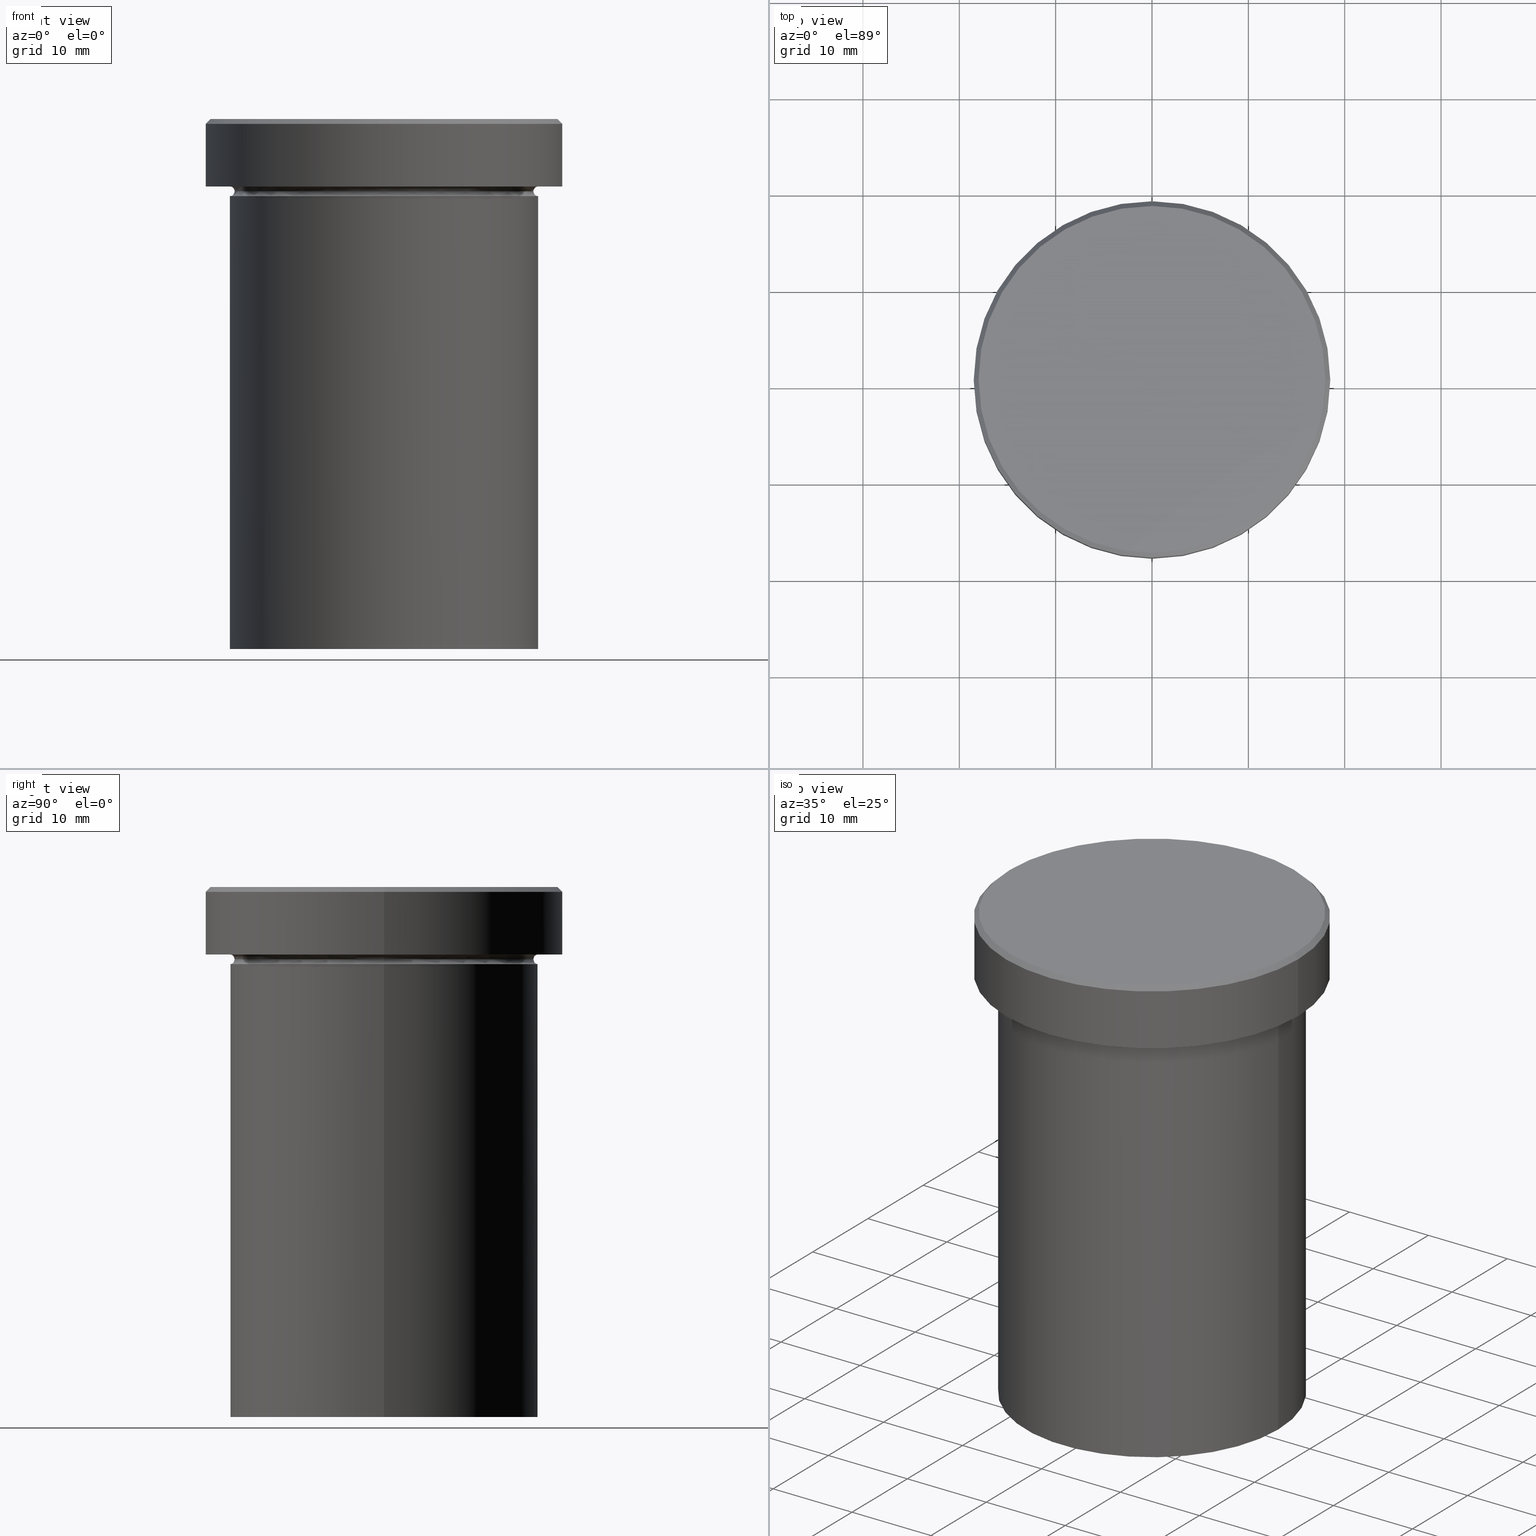
[diagram: canonical four-view strip — front | top / right | iso, engineering-drawing reading convention]
A machine part, canonical four-view strip (front | top / right | iso — engineering-drawing reading convention). The complete STEP part file that produces these views, byte-faithful:
ISO-10303-21;
HEADER;
FILE_DESCRIPTION (( 'STEP AP203' ),
    '1' );
FILE_NAME ('9a04.STEP',
    '2024-01-02T18:53:54',
    ( '' ),
    ( '' ),
    'SwSTEP 2.0',
    'SolidWorks 2019',
    '' );
FILE_SCHEMA (( 'CONFIG_CONTROL_DESIGN' ));
ENDSEC;

DATA;
#1 = VERTEX_POINT ( 'NONE', #240 ) ;
#2 = VECTOR ( 'NONE', #23, 1000.000000000000114 ) ;
#3 = CARTESIAN_POINT ( 'NONE',  ( 16.00000000000000000, 0.000000000000000000, -8.000000000000000000 ) ) ;
#4 = CARTESIAN_POINT ( 'NONE',  ( -16.00000000000000000, 1.959434878635765131E-15, -8.000000000000000000 ) ) ;
#5 = EDGE_LOOP ( 'NONE', ( #224, #128, #217, #188 ) ) ;
#6 = FACE_OUTER_BOUND ( 'NONE', #265, .T. ) ;
#7 = CLOSED_SHELL ( 'NONE', ( #403, #354, #77, #177, #14, #122, #144, #55, #210, #367, #267, #205, #59 ) ) ;
#8 = ORIENTED_EDGE ( 'NONE', *, *, #342, .T. ) ;
#9 = DIRECTION ( 'NONE',  ( -0.000000000000000000, -0.000000000000000000, 1.000000000000000000 ) ) ;
#10 = CARTESIAN_POINT ( 'NONE',  ( 0.000000000000000000, 0.000000000000000000, -7.500000000000000000 ) ) ;
#11 = CIRCLE ( 'NONE', #199, 15.50000000000000000 ) ;
#12 = APPROVAL_ROLE ( '' ) ;
#13 = ORIENTED_EDGE ( 'NONE', *, *, #18, .T. ) ;
#14 = ADVANCED_FACE ( 'NONE', ( #80 ), #208, .T. ) ;
#15 = DIRECTION ( 'NONE',  ( 1.000000000000000000, 0.000000000000000000, 0.000000000000000000 ) ) ;
#16 = CARTESIAN_POINT ( 'NONE',  ( 0.000000000000000000, 0.000000000000000000, -7.500000000000000000 ) ) ;
#17 = DATE_AND_TIME ( #295, #47 ) ;
#18 = EDGE_CURVE ( 'NONE', #1, #269, #285, .T. ) ;
#19 = TOROIDAL_SURFACE ( 'NONE', #176, 16.00000000000000000, 0.5000000000000000000 ) ;
#20 = APPROVAL_DATE_TIME ( #168, #203 ) ;
#21 = FACE_BOUND ( 'NONE', #351, .T. ) ;
#22 = AXIS2_PLACEMENT_3D ( 'NONE', #10, #384, #247 ) ;
#23 = DIRECTION ( 'NONE',  ( 0.7071067811865500152, 8.659560562354962440E-17, -0.7071067811865451302 ) ) ;
#24 = CIRCLE ( 'NONE', #382, 18.50000000000000000 ) ;
#25 = EDGE_CURVE ( 'NONE', #1, #186, #380, .T. ) ;
#26 = ORIENTED_EDGE ( 'NONE', *, *, #48, .T. ) ;
#27 = CARTESIAN_POINT ( 'NONE',  ( 16.00000000000000000, 1.959434878635765131E-15, -7.500000000000000000 ) ) ;
#28 = EDGE_LOOP ( 'NONE', ( #309, #248 ) ) ;
#29 = APPROVAL_DATE_TIME ( #321, #152 ) ;
#30 = DIRECTION ( 'NONE',  ( -1.000000000000000000, 0.000000000000000000, -0.000000000000000000 ) ) ;
#31 = VERTEX_POINT ( 'NONE', #244 ) ;
#32 = SECURITY_CLASSIFICATION ( '', '', #108 ) ;
#33 = DIRECTION ( 'NONE',  ( 0.000000000000000000, -0.000000000000000000, 1.000000000000000000 ) ) ;
#34 = ORIENTED_EDGE ( 'NONE', *, *, #250, .F. ) ;
#35 = CARTESIAN_POINT ( 'NONE',  ( 0.000000000000000000, 0.000000000000000000, -8.000000000000000000 ) ) ;
#36 = EDGE_LOOP ( 'NONE', ( #325, #274 ) ) ;
#37 = EDGE_CURVE ( 'NONE', #153, #133, #399, .T. ) ;
#38 =( NAMED_UNIT ( * ) SI_UNIT ( $, .STERADIAN. ) SOLID_ANGLE_UNIT ( ) );
#39 = ORIENTED_EDGE ( 'NONE', *, *, #48, .F. ) ;
#40 = DIRECTION ( 'NONE',  ( 0.000000000000000000, 0.000000000000000000, -1.000000000000000000 ) ) ;
#41 =( GEOMETRIC_REPRESENTATION_CONTEXT ( 3 ) GLOBAL_UNCERTAINTY_ASSIGNED_CONTEXT ( ( #215 ) ) GLOBAL_UNIT_ASSIGNED_CONTEXT ( ( #303, #76, #38 ) ) REPRESENTATION_CONTEXT ( 'NONE', 'WORKASPACE' ) );
#42 = APPROVAL_STATUS ( 'not_yet_approved' ) ;
#43 = CARTESIAN_POINT ( 'NONE',  ( 16.00000000000000000, 1.959434878635765131E-15, -6.999999999999999112 ) ) ;
#44 = DIRECTION ( 'NONE',  ( -0.000000000000000000, -0.000000000000000000, 1.000000000000000000 ) ) ;
#45 = CARTESIAN_POINT ( 'NONE',  ( 0.000000000000000000, 0.000000000000000000, 0.000000000000000000 ) ) ;
#46 = VERTEX_POINT ( 'NONE', #357 ) ;
#47 = LOCAL_TIME ( 19, 53, 54.00000000000000000, #331 ) ;
#48 = EDGE_CURVE ( 'NONE', #150, #314, #326, .T. ) ;
#49 = CARTESIAN_POINT ( 'NONE',  ( 0.000000000000000000, 0.000000000000000000, -6.999999999999998224 ) ) ;
#50 = VECTOR ( 'NONE', #223, 1000.000000000000000 ) ;
#51 = CARTESIAN_POINT ( 'NONE',  ( 0.000000000000000000, 0.000000000000000000, 0.000000000000000000 ) ) ;
#52 = CONICAL_SURFACE ( 'NONE', #347, 17.99999999999998224, 0.7853981633974517207 ) ;
#53 = DIRECTION ( 'NONE',  ( 1.000000000000000000, 0.000000000000000000, 0.000000000000000000 ) ) ;
#54 = ORIENTED_EDGE ( 'NONE', *, *, #304, .F. ) ;
#55 = ADVANCED_FACE ( 'NONE', ( #85 ), #184, .T. ) ;
#56 = FACE_OUTER_BOUND ( 'NONE', #5, .T. ) ;
#57 = ORIENTED_EDGE ( 'NONE', *, *, #348, .T. ) ;
#58 = EDGE_LOOP ( 'NONE', ( #379, #13, #358, #139 ) ) ;
#59 = ADVANCED_FACE ( 'NONE', ( #56 ), #360, .T. ) ;
#60 = DESIGN_CONTEXT ( 'detailed design', #103, 'design' ) ;
#61 = PLANE ( 'NONE',  #394 ) ;
#62 = VERTEX_POINT ( 'NONE', #86 ) ;
#63 = APPROVAL_PERSON_ORGANIZATION ( #388, #138, #164 ) ;
#64 = CARTESIAN_POINT ( 'NONE',  ( 0.000000000000000000, 0.000000000000000000, -54.99999999999999289 ) ) ;
#65 = CALENDAR_DATE ( 2024, 2, 1 ) ;
#66 = EDGE_CURVE ( 'NONE', #155, #153, #286, .T. ) ;
#67 = DIRECTION ( 'NONE',  ( 1.000000000000000000, 0.000000000000000000, 0.000000000000000000 ) ) ;
#68 = ORIENTED_EDGE ( 'NONE', *, *, #37, .T. ) ;
#69 = DIRECTION ( 'NONE',  ( -1.000000000000000000, 0.000000000000000000, -0.000000000000000000 ) ) ;
#70 = AXIS2_PLACEMENT_3D ( 'NONE', #299, #398, #159 ) ;
#71 = ORIENTED_EDGE ( 'NONE', *, *, #66, .F. ) ;
#72 = ADVANCED_BREP_SHAPE_REPRESENTATION ( '9a04', ( #237, #242 ), #41 ) ;
#73 = DIRECTION ( 'NONE',  ( 0.000000000000000000, 0.000000000000000000, -1.000000000000000000 ) ) ;
#74 = PLANE ( 'NONE',  #119 ) ;
#75 = CIRCLE ( 'NONE', #279, 0.5000000000000004441 ) ;
#76 =( NAMED_UNIT ( * ) PLANE_ANGLE_UNIT ( ) SI_UNIT ( $, .RADIAN. ) );
#77 = ADVANCED_FACE ( 'NONE', ( #132 ), #339, .F. ) ;
#78 = EDGE_LOOP ( 'NONE', ( #71, #94, #149, #294 ) ) ;
#79 = CARTESIAN_POINT ( 'NONE',  ( 17.99999999999998224, 2.204364238465233456E-15, 0.000000000000000000 ) ) ;
#80 = FACE_OUTER_BOUND ( 'NONE', #288, .T. ) ;
#81 = AXIS2_PLACEMENT_3D ( 'NONE', #318, #33, #283 ) ;
#82 = EDGE_CURVE ( 'NONE', #150, #302, #218, .T. ) ;
#83 = PRODUCT_DEFINITION_SHAPE ( 'NONE', 'NONE',  #408 ) ;
#84 = DIRECTION ( 'NONE',  ( 0.000000000000000000, 0.000000000000000000, -1.000000000000000000 ) ) ;
#85 = FACE_OUTER_BOUND ( 'NONE', #58, .T. ) ;
#86 = CARTESIAN_POINT ( 'NONE',  ( -17.99999999999998224, 0.000000000000000000, 0.000000000000000000 ) ) ;
#87 = ORIENTED_EDGE ( 'NONE', *, *, #332, .F. ) ;
#88 = CIRCLE ( 'NONE', #172, 16.00000000000000000 ) ;
#89 = EDGE_CURVE ( 'NONE', #155, #46, #317, .T. ) ;
#90 = FACE_OUTER_BOUND ( 'NONE', #36, .T. ) ;
#91 = ORIENTED_EDGE ( 'NONE', *, *, #304, .T. ) ;
#92 = DIRECTION ( 'NONE',  ( -0.000000000000000000, -0.000000000000000000, 1.000000000000000000 ) ) ;
#93 = CARTESIAN_POINT ( 'NONE',  ( 0.000000000000000000, 16.00000000000000000, -54.99999999999999289 ) ) ;
#94 = ORIENTED_EDGE ( 'NONE', *, *, #89, .T. ) ;
#95 = APPROVAL_STATUS ( 'not_yet_approved' ) ;
#96 = EDGE_CURVE ( 'NONE', #269, #377, #323, .T. ) ;
#97 = AXIS2_PLACEMENT_3D ( 'NONE', #49, #175, #147 ) ;
#98 = DIRECTION ( 'NONE',  ( -0.000000000000000000, -0.000000000000000000, 1.000000000000000000 ) ) ;
#99 = DIRECTION ( 'NONE',  ( -0.000000000000000000, -0.000000000000000000, 1.000000000000000000 ) ) ;
#100 = EDGE_LOOP ( 'NONE', ( #353, #278, #352, #211 ) ) ;
#101 = DIRECTION ( 'NONE',  ( 1.000000000000000000, 0.000000000000000000, 0.000000000000000000 ) ) ;
#102 = PERSON_AND_ORGANIZATION_ROLE ( 'creator' ) ;
#103 = APPLICATION_CONTEXT ( 'configuration controlled 3d designs of mechanical parts and assemblies' ) ;
#104 = CARTESIAN_POINT ( 'NONE',  ( 0.000000000000000000, 0.000000000000000000, -0.5000000000000143219 ) ) ;
#105 = ORGANIZATION ( 'NEUR�EN�', 'NEUR�EN�', '' ) ;
#106 = CC_DESIGN_PERSON_AND_ORGANIZATION_ASSIGNMENT ( #258, #200, ( #306 ) ) ;
#107 = PERSON_AND_ORGANIZATION ( #375, #105 ) ;
#108 = SECURITY_CLASSIFICATION_LEVEL ( 'unclassified' ) ;
#109 = DIRECTION ( 'NONE',  ( -1.000000000000000000, 0.000000000000000000, 0.000000000000000000 ) ) ;
#110 = AXIS2_PLACEMENT_3D ( 'NONE', #310, #344, #53 ) ;
#111 = AXIS2_PLACEMENT_3D ( 'NONE', #409, #121, #349 ) ;
#112 = DIRECTION ( 'NONE',  ( -0.000000000000000000, -0.000000000000000000, 1.000000000000000000 ) ) ;
#113 = EDGE_CURVE ( 'NONE', #46, #155, #191, .T. ) ;
#114 = ORIENTED_EDGE ( 'NONE', *, *, #182, .F. ) ;
#115 = AXIS2_PLACEMENT_3D ( 'NONE', #16, #167, #298 ) ;
#116 = CYLINDRICAL_SURFACE ( 'NONE', #289, 16.00000000000000000 ) ;
#117 = CARTESIAN_POINT ( 'NONE',  ( 18.50000000000000000, 0.000000000000000000, -0.5000000000000143219 ) ) ;
#118 = DIRECTION ( 'NONE',  ( 0.000000000000000000, 0.000000000000000000, -1.000000000000000000 ) ) ;
#119 = AXIS2_PLACEMENT_3D ( 'NONE', #297, #40, #69 ) ;
#120 = ORIENTED_EDGE ( 'NONE', *, *, #227, .T. ) ;
#121 = DIRECTION ( 'NONE',  ( -0.000000000000000000, -0.000000000000000000, 1.000000000000000000 ) ) ;
#122 = ADVANCED_FACE ( 'NONE', ( #90 ), #61, .T. ) ;
#123 = DIRECTION ( 'NONE',  ( -0.000000000000000000, -0.000000000000000000, 1.000000000000000000 ) ) ;
#124 = AXIS2_PLACEMENT_3D ( 'NONE', #390, #291, #15 ) ;
#125 = FACE_OUTER_BOUND ( 'NONE', #214, .T. ) ;
#126 = DIRECTION ( 'NONE',  ( 1.000000000000000000, 0.000000000000000000, 0.000000000000000000 ) ) ;
#127 = EDGE_CURVE ( 'NONE', #150, #133, #311, .T. ) ;
#128 = ORIENTED_EDGE ( 'NONE', *, *, #257, .F. ) ;
#129 = CYLINDRICAL_SURFACE ( 'NONE', #319, 16.00000000000000000 ) ;
#130 = DIRECTION ( 'NONE',  ( -0.000000000000000000, -1.000000000000000000, -0.000000000000000000 ) ) ;
#131 = TOROIDAL_SURFACE ( 'NONE', #124, 16.00000000000000000, 0.5000000000000000000 ) ;
#132 = FACE_OUTER_BOUND ( 'NONE', #180, .T. ) ;
#133 = VERTEX_POINT ( 'NONE', #3 ) ;
#134 = DIRECTION ( 'NONE',  ( -1.000000000000000000, 1.224646799147349509E-16, 0.000000000000000000 ) ) ;
#135 = DIRECTION ( 'NONE',  ( 0.000000000000000000, 0.000000000000000000, -1.000000000000000000 ) ) ;
#136 = APPROVAL_STATUS ( 'not_yet_approved' ) ;
#137 = DIRECTION ( 'NONE',  ( -0.000000000000000000, -0.000000000000000000, 1.000000000000000000 ) ) ;
#138 = APPROVAL ( #42, 'NEUR�EN�' ) ;
#139 = ORIENTED_EDGE ( 'NONE', *, *, #284, .T. ) ;
#140 = FACE_OUTER_BOUND ( 'NONE', #28, .T. ) ;
#141 = AXIS2_PLACEMENT_3D ( 'NONE', #64, #123, #126 ) ;
#142 = LOCAL_TIME ( 19, 53, 54.00000000000000000, #293 ) ;
#143 = PERSON_AND_ORGANIZATION ( #375, #105 ) ;
#144 = ADVANCED_FACE ( 'NONE', ( #125 ), #220, .T. ) ;
#145 = FACE_OUTER_BOUND ( 'NONE', #78, .T. ) ;
#146 = DIRECTION ( 'NONE',  ( -0.000000000000000000, -0.000000000000000000, 1.000000000000000000 ) ) ;
#147 = DIRECTION ( 'NONE',  ( 1.000000000000000000, 0.000000000000000000, 0.000000000000000000 ) ) ;
#148 = CC_DESIGN_PERSON_AND_ORGANIZATION_ASSIGNMENT ( #107, #232, ( #207 ) ) ;
#149 = ORIENTED_EDGE ( 'NONE', *, *, #332, .T. ) ;
#150 = VERTEX_POINT ( 'NONE', #280 ) ;
#151 = LOCAL_TIME ( 19, 53, 54.00000000000000000, #221 ) ;
#152 = APPROVAL ( #95, 'NEUR�EN�' ) ;
#153 = VERTEX_POINT ( 'NONE', #4 ) ;
#154 = AXIS2_PLACEMENT_3D ( 'NONE', #27, #187, #185 ) ;
#155 = VERTEX_POINT ( 'NONE', #251 ) ;
#156 = DIRECTION ( 'NONE',  ( -0.000000000000000000, -0.000000000000000000, 1.000000000000000000 ) ) ;
#157 = DIRECTION ( 'NONE',  ( -0.000000000000000000, -0.000000000000000000, 1.000000000000000000 ) ) ;
#158 = ORIENTED_EDGE ( 'NONE', *, *, #182, .T. ) ;
#159 = DIRECTION ( 'NONE',  ( 1.000000000000000000, 0.000000000000000000, 0.000000000000000000 ) ) ;
#160 = CARTESIAN_POINT ( 'NONE',  ( -16.00000000000000000, 0.000000000000000000, -7.500000000000000000 ) ) ;
#161 = VECTOR ( 'NONE', #156, 1000.000000000000000 ) ;
#162 = DIRECTION ( 'NONE',  ( 0.000000000000000000, -1.000000000000000000, 0.000000000000000000 ) ) ;
#163 = CARTESIAN_POINT ( 'NONE',  ( 0.000000000000000000, 0.000000000000000000, -0.5000000000000143219 ) ) ;
#164 = APPROVAL_ROLE ( '' ) ;
#165 = DATE_AND_TIME ( #296, #336 ) ;
#166 = CARTESIAN_POINT ( 'NONE',  ( 0.000000000000000000, 0.000000000000000000, -8.000000000000000000 ) ) ;
#167 = DIRECTION ( 'NONE',  ( 0.000000000000000000, 0.000000000000000000, -1.000000000000000000 ) ) ;
#168 = DATE_AND_TIME ( #396, #393 ) ;
#169 = CARTESIAN_POINT ( 'NONE',  ( 0.000000000000000000, 0.000000000000000000, -7.500000000000000000 ) ) ;
#170 = PERSON_AND_ORGANIZATION_ROLE ( 'design_supplier' ) ;
#171 = CARTESIAN_POINT ( 'NONE',  ( 17.99999999999998224, 2.234980408443918426E-15, 0.000000000000000000 ) ) ;
#172 = AXIS2_PLACEMENT_3D ( 'NONE', #260, #9, #333 ) ;
#173 = FACE_OUTER_BOUND ( 'NONE', #356, .T. ) ;
#174 = CARTESIAN_POINT ( 'NONE',  ( -17.99999999999998224, 0.000000000000000000, 0.000000000000000000 ) ) ;
#175 = DIRECTION ( 'NONE',  ( -0.000000000000000000, -0.000000000000000000, 1.000000000000000000 ) ) ;
#176 = AXIS2_PLACEMENT_3D ( 'NONE', #341, #73, #109 ) ;
#177 = ADVANCED_FACE ( 'NONE', ( #6 ), #129, .T. ) ;
#178 = DIRECTION ( 'NONE',  ( -0.000000000000000000, -0.000000000000000000, 1.000000000000000000 ) ) ;
#179 = ORIENTED_EDGE ( 'NONE', *, *, #227, .F. ) ;
#180 = EDGE_LOOP ( 'NONE', ( #114, #320, #68, #305 ) ) ;
#181 = DATE_TIME_ROLE ( 'classification_date' ) ;
#182 = EDGE_CURVE ( 'NONE', #314, #150, #11, .T. ) ;
#183 = CC_DESIGN_APPROVAL ( #203, ( #408 ) ) ;
#184 = CYLINDRICAL_SURFACE ( 'NONE', #275, 18.50000000000000000 ) ;
#185 = DIRECTION ( 'NONE',  ( -1.000000000000000000, -1.224646799147349509E-16, 0.000000000000000000 ) ) ;
#186 = VERTEX_POINT ( 'NONE', #261 ) ;
#187 = DIRECTION ( 'NONE',  ( -1.224646799147353207E-16, 1.000000000000000000, 0.000000000000000000 ) ) ;
#188 = ORIENTED_EDGE ( 'NONE', *, *, #284, .F. ) ;
#189 = SHAPE_DEFINITION_REPRESENTATION ( #83, #72 ) ;
#190 = CARTESIAN_POINT ( 'NONE',  ( 16.00000000000000000, 0.000000000000000000, -7.500000000000000000 ) ) ;
#191 = CIRCLE ( 'NONE', #300, 16.00000000000000000 ) ;
#192 = CIRCLE ( 'NONE', #376, 18.50000000000000000 ) ;
#193 = ORIENTED_EDGE ( 'NONE', *, *, #348, .F. ) ;
#194 = ORIENTED_EDGE ( 'NONE', *, *, #276, .T. ) ;
#195 = DIRECTION ( 'NONE',  ( 1.224646799147353207E-16, 1.000000000000000000, 0.000000000000000000 ) ) ;
#196 = AXIS2_PLACEMENT_3D ( 'NONE', #35, #98, #282 ) ;
#197 = PERSON_AND_ORGANIZATION_ROLE ( 'classification_officer' ) ;
#198 = CARTESIAN_POINT ( 'NONE',  ( 0.000000000000000000, 0.000000000000000000, 0.000000000000000000 ) ) ;
#199 = AXIS2_PLACEMENT_3D ( 'NONE', #169, #44, #292 ) ;
#200 = PERSON_AND_ORGANIZATION_ROLE ( 'design_owner' ) ;
#201 = APPROVAL_DATE_TIME ( #391, #138 ) ;
#202 = LINE ( 'NONE', #389, #372 ) ;
#203 = APPROVAL ( #136, 'NEUR�EN�' ) ;
#204 = CC_DESIGN_APPROVAL ( #138, ( #207 ) ) ;
#205 = ADVANCED_FACE ( 'NONE', ( #173 ), #355, .F. ) ;
#206 = DIRECTION ( 'NONE',  ( -0.7071067811865500152, 0.000000000000000000, -0.7071067811865451302 ) ) ;
#207 = PRODUCT_DEFINITION_FORMATION_WITH_SPECIFIED_SOURCE ( 'LIBOVOLN�', '', #306, .NOT_KNOWN. ) ;
#208 = CYLINDRICAL_SURFACE ( 'NONE', #110, 18.50000000000000000 ) ;
#209 = APPROVAL_PERSON_ORGANIZATION ( #301, #203, #12 ) ;
#210 = ADVANCED_FACE ( 'NONE', ( #21, #140 ), #74, .T. ) ;
#211 = ORIENTED_EDGE ( 'NONE', *, *, #387, .F. ) ;
#212 = DIRECTION ( 'NONE',  ( 0.000000000000000000, 0.000000000000000000, -1.000000000000000000 ) ) ;
#213 = CC_DESIGN_PERSON_AND_ORGANIZATION_ASSIGNMENT ( #264, #197, ( #32 ) ) ;
#214 = EDGE_LOOP ( 'NONE', ( #370, #8 ) ) ;
#215 = UNCERTAINTY_MEASURE_WITH_UNIT (LENGTH_MEASURE( 1.000000000000000082E-05 ), #303, 'distance_accuracy_value', 'NONE');
#216 = DIRECTION ( 'NONE',  ( 1.000000000000000000, 0.000000000000000000, 0.000000000000000000 ) ) ;
#217 = ORIENTED_EDGE ( 'NONE', *, *, #387, .T. ) ;
#218 = CIRCLE ( 'NONE', #154, 0.5000000000000004441 ) ;
#219 = CARTESIAN_POINT ( 'NONE',  ( -18.50000000000000000, 2.265596578422603396E-15, 0.000000000000000000 ) ) ;
#220 = PLANE ( 'NONE',  #81 ) ;
#221 = COORDINATED_UNIVERSAL_TIME_OFFSET ( 1, 0, .AHEAD. ) ;
#222 = AXIS2_PLACEMENT_3D ( 'NONE', #190, #162, #252 ) ;
#223 = DIRECTION ( 'NONE',  ( -0.000000000000000000, -0.000000000000000000, 1.000000000000000000 ) ) ;
#224 = ORIENTED_EDGE ( 'NONE', *, *, #361, .F. ) ;
#225 = APPROVAL_ROLE ( '' ) ;
#226 = FACE_OUTER_BOUND ( 'NONE', #392, .T. ) ;
#227 = EDGE_CURVE ( 'NONE', #31, #302, #88, .T. ) ;
#228 = DIRECTION ( 'NONE',  ( -0.000000000000000000, -0.000000000000000000, 1.000000000000000000 ) ) ;
#229 = AXIS2_PLACEMENT_3D ( 'NONE', #271, #84, #245 ) ;
#230 = DIRECTION ( 'NONE',  ( 1.000000000000000000, 0.000000000000000000, 0.000000000000000000 ) ) ;
#231 = CIRCLE ( 'NONE', #406, 0.5000000000000004441 ) ;
#232 = PERSON_AND_ORGANIZATION_ROLE ( 'creator' ) ;
#233 = EDGE_LOOP ( 'NONE', ( #158, #374, #179, #34 ) ) ;
#234 = CARTESIAN_POINT ( 'NONE',  ( -16.00000000000000000, 1.959434878635765131E-15, -7.500000000000000000 ) ) ;
#235 = DIRECTION ( 'NONE',  ( 1.000000000000000000, 0.000000000000000000, 0.000000000000000000 ) ) ;
#236 = MECHANICAL_CONTEXT ( 'NONE', #365, 'mechanical' ) ;
#237 = MANIFOLD_SOLID_BREP ( 'Zkosen�1', #7 ) ;
#238 = DIRECTION ( 'NONE',  ( 1.000000000000000000, 0.000000000000000000, 0.000000000000000000 ) ) ;
#239 = AXIS2_PLACEMENT_3D ( 'NONE', #166, #137, #230 ) ;
#240 = CARTESIAN_POINT ( 'NONE',  ( -18.50000000000000000, 2.265596578422603396E-15, -6.999999999999998224 ) ) ;
#241 = LINE ( 'NONE', #174, #270 ) ;
#242 = AXIS2_PLACEMENT_3D ( 'NONE', #45, #362, #335 ) ;
#243 = ORIENTED_EDGE ( 'NONE', *, *, #127, .T. ) ;
#244 = CARTESIAN_POINT ( 'NONE',  ( -16.00000000000000000, 0.000000000000000000, -6.999999999999999112 ) ) ;
#245 = DIRECTION ( 'NONE',  ( -1.000000000000000000, 0.000000000000000000, 0.000000000000000000 ) ) ;
#246 = CARTESIAN_POINT ( 'NONE',  ( 0.000000000000000000, 0.000000000000000000, 0.000000000000000000 ) ) ;
#247 = DIRECTION ( 'NONE',  ( 1.000000000000000000, 0.000000000000000000, 0.000000000000000000 ) ) ;
#248 = ORIENTED_EDGE ( 'NONE', *, *, #18, .F. ) ;
#249 = CIRCLE ( 'NONE', #70, 17.99999999999998224 ) ;
#250 = EDGE_CURVE ( 'NONE', #314, #31, #75, .T. ) ;
#251 = CARTESIAN_POINT ( 'NONE',  ( -16.00000000000000000, 1.959434878635765131E-15, -54.99999999999999289 ) ) ;
#252 = DIRECTION ( 'NONE',  ( 0.000000000000000000, 0.000000000000000000, -1.000000000000000000 ) ) ;
#253 = CC_DESIGN_APPROVAL ( #152, ( #32 ) ) ;
#254 = CC_DESIGN_DATE_AND_TIME_ASSIGNMENT ( #17, #327, ( #408 ) ) ;
#255 = CALENDAR_DATE ( 2024, 2, 1 ) ;
#256 = ORIENTED_EDGE ( 'NONE', *, *, #315, .F. ) ;
#257 = EDGE_CURVE ( 'NONE', #62, #340, #328, .T. ) ;
#258 = PERSON_AND_ORGANIZATION ( #375, #105 ) ;
#259 = APPROVAL_PERSON_ORGANIZATION ( #273, #152, #225 ) ;
#260 = CARTESIAN_POINT ( 'NONE',  ( 0.000000000000000000, 0.000000000000000000, -6.999999999999999112 ) ) ;
#261 = CARTESIAN_POINT ( 'NONE',  ( -18.50000000000000000, 2.265596578422603396E-15, -0.5000000000000143219 ) ) ;
#262 = PRODUCT_RELATED_PRODUCT_CATEGORY ( 'detail', '', ( #306 ) ) ;
#263 = CIRCLE ( 'NONE', #97, 18.50000000000000000 ) ;
#264 = PERSON_AND_ORGANIZATION ( #375, #105 ) ;
#265 = EDGE_LOOP ( 'NONE', ( #345, #405, #54, #87 ) ) ;
#266 = DIRECTION ( 'NONE',  ( 1.000000000000000000, 0.000000000000000000, 0.000000000000000000 ) ) ;
#267 = ADVANCED_FACE ( 'NONE', ( #226 ), #131, .F. ) ;
#268 = CARTESIAN_POINT ( 'NONE',  ( 0.000000000000000000, 0.000000000000000000, -6.999999999999998224 ) ) ;
#269 = VERTEX_POINT ( 'NONE', #395 ) ;
#270 = VECTOR ( 'NONE', #206, 1000.000000000000114 ) ;
#271 = CARTESIAN_POINT ( 'NONE',  ( 0.000000000000000000, 0.000000000000000000, 0.000000000000000000 ) ) ;
#272 = ORIENTED_EDGE ( 'NONE', *, *, #96, .F. ) ;
#273 = PERSON_AND_ORGANIZATION ( #375, #105 ) ;
#274 = ORIENTED_EDGE ( 'NONE', *, *, #89, .F. ) ;
#275 = AXIS2_PLACEMENT_3D ( 'NONE', #246, #313, #266 ) ;
#276 = EDGE_CURVE ( 'NONE', #186, #377, #192, .T. ) ;
#277 = CARTESIAN_POINT ( 'NONE',  ( 18.50000000000000000, 0.000000000000000000, 0.000000000000000000 ) ) ;
#278 = ORIENTED_EDGE ( 'NONE', *, *, #361, .T. ) ;
#279 = AXIS2_PLACEMENT_3D ( 'NONE', #160, #130, #383 ) ;
#280 = CARTESIAN_POINT ( 'NONE',  ( 15.50000000000000000, 0.000000000000000000, -7.500000000000000000 ) ) ;
#281 = ORIENTED_EDGE ( 'NONE', *, *, #25, .T. ) ;
#282 = DIRECTION ( 'NONE',  ( 1.000000000000000000, 0.000000000000000000, 0.000000000000000000 ) ) ;
#283 = DIRECTION ( 'NONE',  ( 1.000000000000000000, 0.000000000000000000, 0.000000000000000000 ) ) ;
#284 = EDGE_CURVE ( 'NONE', #377, #186, #24, .T. ) ;
#285 = CIRCLE ( 'NONE', #346, 18.50000000000000000 ) ;
#286 = LINE ( 'NONE', #350, #50 ) ;
#287 = APPLICATION_PROTOCOL_DEFINITION ( 'international standard', 'config_control_design', 1994, #103 ) ;
#288 = EDGE_LOOP ( 'NONE', ( #401, #281, #194, #272 ) ) ;
#289 = AXIS2_PLACEMENT_3D ( 'NONE', #404, #146, #238 ) ;
#290 = DIRECTION ( 'NONE',  ( -0.000000000000000000, -0.000000000000000000, 1.000000000000000000 ) ) ;
#291 = DIRECTION ( 'NONE',  ( -0.000000000000000000, -0.000000000000000000, 1.000000000000000000 ) ) ;
#292 = DIRECTION ( 'NONE',  ( 1.000000000000000000, 0.000000000000000000, 0.000000000000000000 ) ) ;
#293 = COORDINATED_UNIVERSAL_TIME_OFFSET ( 1, 0, .AHEAD. ) ;
#294 = ORIENTED_EDGE ( 'NONE', *, *, #37, .F. ) ;
#295 = CALENDAR_DATE ( 2024, 2, 1 ) ;
#296 = CALENDAR_DATE ( 2024, 2, 1 ) ;
#297 = CARTESIAN_POINT ( 'NONE',  ( 0.000000000000000000, 18.50000000000000000, -6.999999999999999112 ) ) ;
#298 = DIRECTION ( 'NONE',  ( -1.000000000000000000, 0.000000000000000000, 0.000000000000000000 ) ) ;
#299 = CARTESIAN_POINT ( 'NONE',  ( 0.000000000000000000, 0.000000000000000000, 0.000000000000000000 ) ) ;
#300 = AXIS2_PLACEMENT_3D ( 'NONE', #316, #92, #216 ) ;
#301 = PERSON_AND_ORGANIZATION ( #375, #105 ) ;
#302 = VERTEX_POINT ( 'NONE', #43 ) ;
#303 =( LENGTH_UNIT ( ) NAMED_UNIT ( * ) SI_UNIT ( .MILLI., .METRE. ) );
#304 = EDGE_CURVE ( 'NONE', #133, #153, #368, .T. ) ;
#305 = ORIENTED_EDGE ( 'NONE', *, *, #127, .F. ) ;
#306 = PRODUCT ( '9a04', '9a04', '', ( #236 ) ) ;
#307 = CIRCLE ( 'NONE', #363, 16.00000000000000000 ) ;
#308 = DIRECTION ( 'NONE',  ( 1.000000000000000000, 0.000000000000000000, 0.000000000000000000 ) ) ;
#309 = ORIENTED_EDGE ( 'NONE', *, *, #373, .F. ) ;
#310 = CARTESIAN_POINT ( 'NONE',  ( 0.000000000000000000, 0.000000000000000000, 0.000000000000000000 ) ) ;
#311 = CIRCLE ( 'NONE', #222, 0.5000000000000004441 ) ;
#312 = ORIENTED_EDGE ( 'NONE', *, *, #82, .F. ) ;
#313 = DIRECTION ( 'NONE',  ( -0.000000000000000000, -0.000000000000000000, 1.000000000000000000 ) ) ;
#314 = VERTEX_POINT ( 'NONE', #364 ) ;
#315 = EDGE_CURVE ( 'NONE', #314, #153, #231, .T. ) ;
#316 = CARTESIAN_POINT ( 'NONE',  ( 0.000000000000000000, 0.000000000000000000, -54.99999999999999289 ) ) ;
#317 = CIRCLE ( 'NONE', #141, 16.00000000000000000 ) ;
#318 = CARTESIAN_POINT ( 'NONE',  ( 0.000000000000000000, 0.000000000000000000, 0.000000000000000000 ) ) ;
#319 = AXIS2_PLACEMENT_3D ( 'NONE', #381, #99, #67 ) ;
#320 = ORIENTED_EDGE ( 'NONE', *, *, #315, .T. ) ;
#321 = DATE_AND_TIME ( #65, #151 ) ;
#322 = CC_DESIGN_DATE_AND_TIME_ASSIGNMENT ( #165, #181, ( #32 ) ) ;
#323 = LINE ( 'NONE', #277, #371 ) ;
#324 = APPLICATION_PROTOCOL_DEFINITION ( 'international standard', 'config_control_design', 1994, #365 ) ;
#325 = ORIENTED_EDGE ( 'NONE', *, *, #113, .F. ) ;
#326 = CIRCLE ( 'NONE', #111, 15.50000000000000000 ) ;
#327 = DATE_TIME_ROLE ( 'creation_date' ) ;
#328 = CIRCLE ( 'NONE', #343, 17.99999999999998224 ) ;
#329 = COORDINATED_UNIVERSAL_TIME_OFFSET ( 1, 0, .AHEAD. ) ;
#330 = DIRECTION ( 'NONE',  ( 0.000000000000000000, 0.000000000000000000, -1.000000000000000000 ) ) ;
#331 = COORDINATED_UNIVERSAL_TIME_OFFSET ( 1, 0, .AHEAD. ) ;
#332 = EDGE_CURVE ( 'NONE', #46, #133, #202, .T. ) ;
#333 = DIRECTION ( 'NONE',  ( -1.000000000000000000, 0.000000000000000000, 0.000000000000000000 ) ) ;
#334 = PERSON_AND_ORGANIZATION ( #375, #105 ) ;
#335 = DIRECTION ( 'NONE',  ( 1.000000000000000000, 0.000000000000000000, 0.000000000000000000 ) ) ;
#336 = LOCAL_TIME ( 19, 53, 54.00000000000000000, #329 ) ;
#337 = CC_DESIGN_PERSON_AND_ORGANIZATION_ASSIGNMENT ( #143, #102, ( #408 ) ) ;
#338 = LINE ( 'NONE', #79, #2 ) ;
#339 = TOROIDAL_SURFACE ( 'NONE', #22, 16.00000000000000000, 0.5000000000000000000 ) ;
#340 = VERTEX_POINT ( 'NONE', #171 ) ;
#341 = CARTESIAN_POINT ( 'NONE',  ( 0.000000000000000000, 0.000000000000000000, -7.500000000000000000 ) ) ;
#342 = EDGE_CURVE ( 'NONE', #340, #62, #249, .T. ) ;
#343 = AXIS2_PLACEMENT_3D ( 'NONE', #198, #228, #101 ) ;
#344 = DIRECTION ( 'NONE',  ( -0.000000000000000000, -0.000000000000000000, 1.000000000000000000 ) ) ;
#345 = ORIENTED_EDGE ( 'NONE', *, *, #113, .T. ) ;
#346 = AXIS2_PLACEMENT_3D ( 'NONE', #268, #178, #308 ) ;
#347 = AXIS2_PLACEMENT_3D ( 'NONE', #51, #118, #366 ) ;
#348 = EDGE_CURVE ( 'NONE', #302, #31, #307, .T. ) ;
#349 = DIRECTION ( 'NONE',  ( 1.000000000000000000, 0.000000000000000000, 0.000000000000000000 ) ) ;
#350 = CARTESIAN_POINT ( 'NONE',  ( -16.00000000000000000, 1.959434878635765131E-15, 0.000000000000000000 ) ) ;
#351 = EDGE_LOOP ( 'NONE', ( #120, #57 ) ) ;
#352 = ORIENTED_EDGE ( 'NONE', *, *, #276, .F. ) ;
#353 = ORIENTED_EDGE ( 'NONE', *, *, #342, .F. ) ;
#354 = ADVANCED_FACE ( 'NONE', ( #369 ), #19, .F. ) ;
#355 = TOROIDAL_SURFACE ( 'NONE', #115, 16.00000000000000000, 0.5000000000000000000 ) ;
#356 = EDGE_LOOP ( 'NONE', ( #312, #26, #378, #193 ) ) ;
#357 = CARTESIAN_POINT ( 'NONE',  ( 16.00000000000000000, 0.000000000000000000, -54.99999999999999289 ) ) ;
#358 = ORIENTED_EDGE ( 'NONE', *, *, #96, .T. ) ;
#359 = CARTESIAN_POINT ( 'NONE',  ( 0.000000000000000000, 0.000000000000000000, -6.999999999999999112 ) ) ;
#360 = CONICAL_SURFACE ( 'NONE', #229, 17.99999999999998224, 0.7853981633974517207 ) ;
#361 = EDGE_CURVE ( 'NONE', #340, #377, #338, .T. ) ;
#362 = DIRECTION ( 'NONE',  ( 0.000000000000000000, 0.000000000000000000, 1.000000000000000000 ) ) ;
#363 = AXIS2_PLACEMENT_3D ( 'NONE', #359, #112, #400 ) ;
#364 = CARTESIAN_POINT ( 'NONE',  ( -15.50000000000000000, 1.928818708657081344E-15, -7.500000000000000000 ) ) ;
#365 = APPLICATION_CONTEXT ( 'configuration controlled 3d designs of mechanical parts and assemblies' ) ;
#366 = DIRECTION ( 'NONE',  ( -1.000000000000000000, 0.000000000000000000, 0.000000000000000000 ) ) ;
#367 = ADVANCED_FACE ( 'NONE', ( #145 ), #116, .T. ) ;
#368 = CIRCLE ( 'NONE', #239, 16.00000000000000000 ) ;
#369 = FACE_OUTER_BOUND ( 'NONE', #233, .T. ) ;
#370 = ORIENTED_EDGE ( 'NONE', *, *, #257, .T. ) ;
#371 = VECTOR ( 'NONE', #157, 1000.000000000000000 ) ;
#372 = VECTOR ( 'NONE', #290, 1000.000000000000000 ) ;
#373 = EDGE_CURVE ( 'NONE', #269, #1, #263, .T. ) ;
#374 = ORIENTED_EDGE ( 'NONE', *, *, #82, .T. ) ;
#375 = PERSON ( 'NEUR�EN�', 'NEUR�EN�', 'NEUR�EN�', ('NEUR�EN�'), ('NEUR�EN�'), ('NEUR�EN�') ) ;
#376 = AXIS2_PLACEMENT_3D ( 'NONE', #163, #135, #386 ) ;
#377 = VERTEX_POINT ( 'NONE', #117 ) ;
#378 = ORIENTED_EDGE ( 'NONE', *, *, #250, .T. ) ;
#379 = ORIENTED_EDGE ( 'NONE', *, *, #25, .F. ) ;
#380 = LINE ( 'NONE', #219, #161 ) ;
#381 = CARTESIAN_POINT ( 'NONE',  ( 0.000000000000000000, 0.000000000000000000, 0.000000000000000000 ) ) ;
#382 = AXIS2_PLACEMENT_3D ( 'NONE', #104, #330, #235 ) ;
#383 = DIRECTION ( 'NONE',  ( 0.000000000000000000, 0.000000000000000000, -1.000000000000000000 ) ) ;
#384 = DIRECTION ( 'NONE',  ( -0.000000000000000000, -0.000000000000000000, 1.000000000000000000 ) ) ;
#385 = COORDINATED_UNIVERSAL_TIME_OFFSET ( 1, 0, .AHEAD. ) ;
#386 = DIRECTION ( 'NONE',  ( 1.000000000000000000, 0.000000000000000000, 0.000000000000000000 ) ) ;
#387 = EDGE_CURVE ( 'NONE', #62, #186, #241, .T. ) ;
#388 = PERSON_AND_ORGANIZATION ( #375, #105 ) ;
#389 = CARTESIAN_POINT ( 'NONE',  ( 16.00000000000000000, 0.000000000000000000, 0.000000000000000000 ) ) ;
#390 = CARTESIAN_POINT ( 'NONE',  ( 0.000000000000000000, 0.000000000000000000, -7.500000000000000000 ) ) ;
#391 = DATE_AND_TIME ( #255, #142 ) ;
#392 = EDGE_LOOP ( 'NONE', ( #256, #39, #243, #91 ) ) ;
#393 = LOCAL_TIME ( 19, 53, 54.00000000000000000, #385 ) ;
#394 = AXIS2_PLACEMENT_3D ( 'NONE', #93, #212, #30 ) ;
#395 = CARTESIAN_POINT ( 'NONE',  ( 18.50000000000000000, 0.000000000000000000, -6.999999999999998224 ) ) ;
#396 = CALENDAR_DATE ( 2024, 2, 1 ) ;
#397 = CC_DESIGN_PERSON_AND_ORGANIZATION_ASSIGNMENT ( #334, #170, ( #207 ) ) ;
#398 = DIRECTION ( 'NONE',  ( -0.000000000000000000, -0.000000000000000000, 1.000000000000000000 ) ) ;
#399 = CIRCLE ( 'NONE', #196, 16.00000000000000000 ) ;
#400 = DIRECTION ( 'NONE',  ( -1.000000000000000000, 0.000000000000000000, 0.000000000000000000 ) ) ;
#401 = ORIENTED_EDGE ( 'NONE', *, *, #373, .T. ) ;
#402 = FACE_OUTER_BOUND ( 'NONE', #100, .T. ) ;
#403 = ADVANCED_FACE ( 'NONE', ( #402 ), #52, .T. ) ;
#404 = CARTESIAN_POINT ( 'NONE',  ( 0.000000000000000000, 0.000000000000000000, 0.000000000000000000 ) ) ;
#405 = ORIENTED_EDGE ( 'NONE', *, *, #66, .T. ) ;
#406 = AXIS2_PLACEMENT_3D ( 'NONE', #234, #195, #134 ) ;
#407 = CC_DESIGN_SECURITY_CLASSIFICATION ( #32, ( #207 ) ) ;
#408 = PRODUCT_DEFINITION ( 'NEZN�M�', '', #207, #60 ) ;
#409 = CARTESIAN_POINT ( 'NONE',  ( 0.000000000000000000, 0.000000000000000000, -7.500000000000000000 ) ) ;
ENDSEC;
END-ISO-10303-21;
